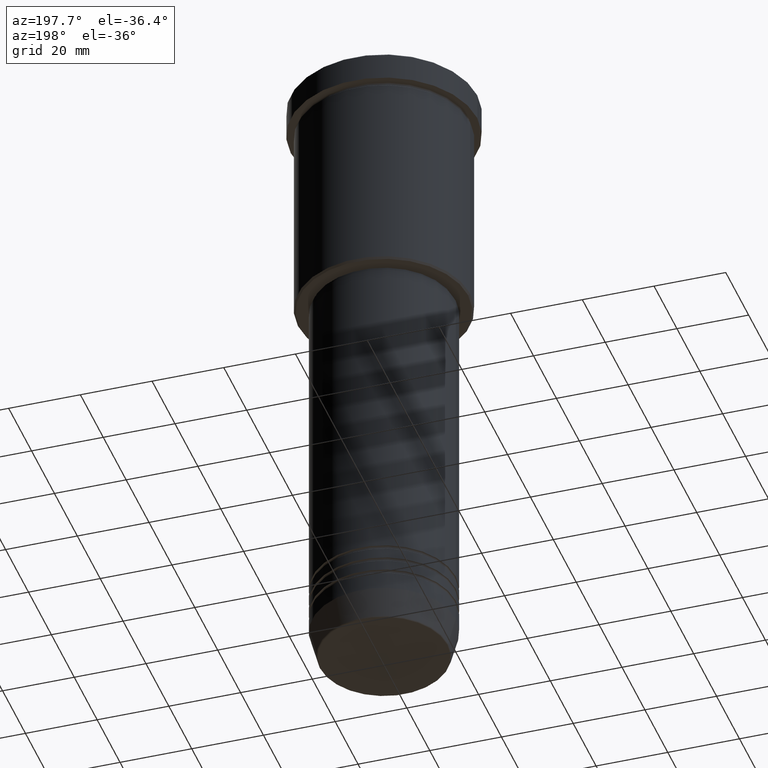
[diagram: clean part render]
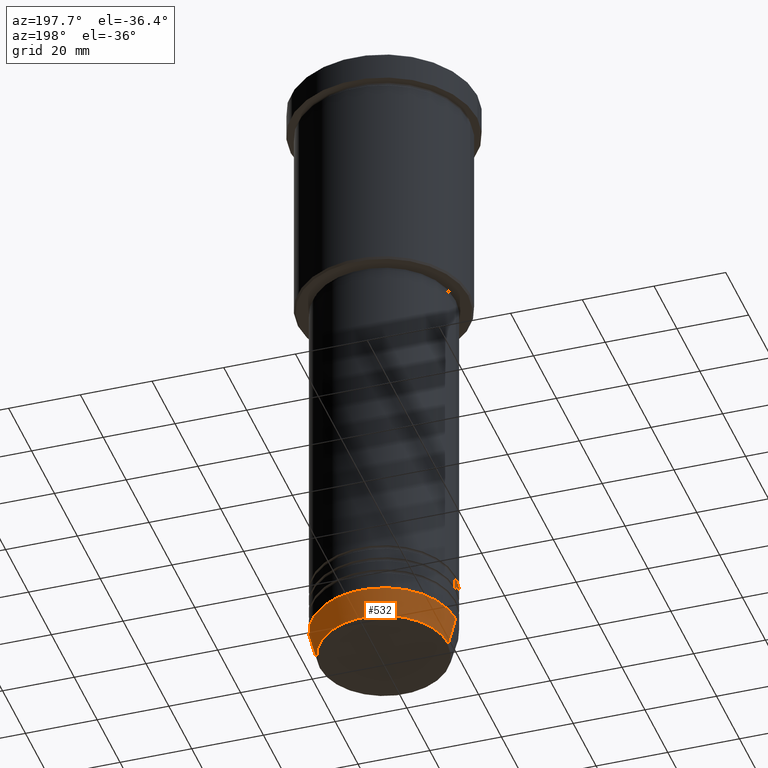
[diagram: same view with one face highlighted and labeled with its STEP entity id]
A machine part, auxiliary view. The second image highlights one B-rep face of the part: STEP entity #532.
In plain terms, the highlighted conical surface has half-angle 15 deg.
Its self-contained STEP definition (entity closure, byte-faithful):
#43 = LINE ( 'NONE', #772, #600 ) ;
#90 = VERTEX_POINT ( 'NONE', #904 ) ;
#184 = VECTOR ( 'NONE', #467, 1000.000000000000000 ) ;
#330 = CARTESIAN_POINT ( 'NONE',  ( 0.000000000000000000, 0.000000000000000000, -172.0000000000000000 ) ) ;
#340 = DIRECTION ( 'NONE',  ( 1.000000000000000000, 0.000000000000000000, 0.000000000000000000 ) ) ;
#389 = ORIENTED_EDGE ( 'NONE', *, *, #743, .T. ) ;
#394 = EDGE_CURVE ( 'NONE', #90, #1007, #712, .T. ) ;
#443 = CARTESIAN_POINT ( 'NONE',  ( 17.95570587970607690, 0.000000000000000000, -179.6294095225512706 ) ) ;
#449 = VERTEX_POINT ( 'NONE', #443 ) ;
#467 = DIRECTION ( 'NONE',  ( -0.2588190451025213501, 3.169619151431772337E-17, 0.9659258262890680902 ) ) ;
#474 = EDGE_CURVE ( 'NONE', #1051, #1007, #1093, .T. ) ;
#484 = CONICAL_SURFACE ( 'NONE', #737, 20.00000000000000355, 0.2617993877991500740 ) ;
#493 = EDGE_LOOP ( 'NONE', ( #389, #739, #692, #1135 ) ) ;
#500 = DIRECTION ( 'NONE',  ( -0.000000000000000000, -0.000000000000000000, 1.000000000000000000 ) ) ;
#508 = CARTESIAN_POINT ( 'NONE',  ( 20.00000000000000355, 0.000000000000000000, -172.0000000000000000 ) ) ;
#532 = ADVANCED_FACE ( 'NONE', ( #854 ), #484, .T. ) ;
#544 = CIRCLE ( 'NONE', #1159, 17.95570587970607690 ) ;
#600 = VECTOR ( 'NONE', #1152, 1000.000000000000000 ) ;
#637 = CARTESIAN_POINT ( 'NONE',  ( -20.00000000000000355, 2.449293598294706907E-15, -172.0000000000000000 ) ) ;
#692 = ORIENTED_EDGE ( 'NONE', *, *, #474, .F. ) ;
#702 = DIRECTION ( 'NONE',  ( -0.000000000000000000, -0.000000000000000000, 1.000000000000000000 ) ) ;
#712 = LINE ( 'NONE', #637, #184 ) ;
#737 = AXIS2_PLACEMENT_3D ( 'NONE', #774, #500, #1147 ) ;
#739 = ORIENTED_EDGE ( 'NONE', *, *, #394, .T. ) ;
#743 = EDGE_CURVE ( 'NONE', #449, #90, #544, .T. ) ;
#759 = AXIS2_PLACEMENT_3D ( 'NONE', #330, #702, #1081 ) ;
#772 = CARTESIAN_POINT ( 'NONE',  ( 20.00000000000000355, 0.000000000000000000, -172.0000000000000000 ) ) ;
#774 = CARTESIAN_POINT ( 'NONE',  ( 0.000000000000000000, 0.000000000000000000, -172.0000000000000000 ) ) ;
#854 = FACE_OUTER_BOUND ( 'NONE', #493, .T. ) ;
#904 = CARTESIAN_POINT ( 'NONE',  ( -17.95570587970607690, 2.324116685748021371E-15, -179.6294095225512706 ) ) ;
#937 = CARTESIAN_POINT ( 'NONE',  ( -20.00000000000000355, 2.449293598294706907E-15, -172.0000000000000000 ) ) ;
#993 = CARTESIAN_POINT ( 'NONE',  ( 0.000000000000000000, 0.000000000000000000, -179.6294095225512706 ) ) ;
#1007 = VERTEX_POINT ( 'NONE', #937 ) ;
#1051 = VERTEX_POINT ( 'NONE', #508 ) ;
#1054 = EDGE_CURVE ( 'NONE', #449, #1051, #43, .T. ) ;
#1081 = DIRECTION ( 'NONE',  ( 1.000000000000000000, 0.000000000000000000, 0.000000000000000000 ) ) ;
#1093 = CIRCLE ( 'NONE', #759, 20.00000000000000355 ) ;
#1135 = ORIENTED_EDGE ( 'NONE', *, *, #1054, .F. ) ;
#1147 = DIRECTION ( 'NONE',  ( 1.000000000000000000, 0.000000000000000000, 0.000000000000000000 ) ) ;
#1152 = DIRECTION ( 'NONE',  ( 0.2588190451025213501, 0.000000000000000000, 0.9659258262890680902 ) ) ;
#1159 = AXIS2_PLACEMENT_3D ( 'NONE', #993, #1173, #340 ) ;
#1173 = DIRECTION ( 'NONE',  ( -0.000000000000000000, -0.000000000000000000, 1.000000000000000000 ) ) ;